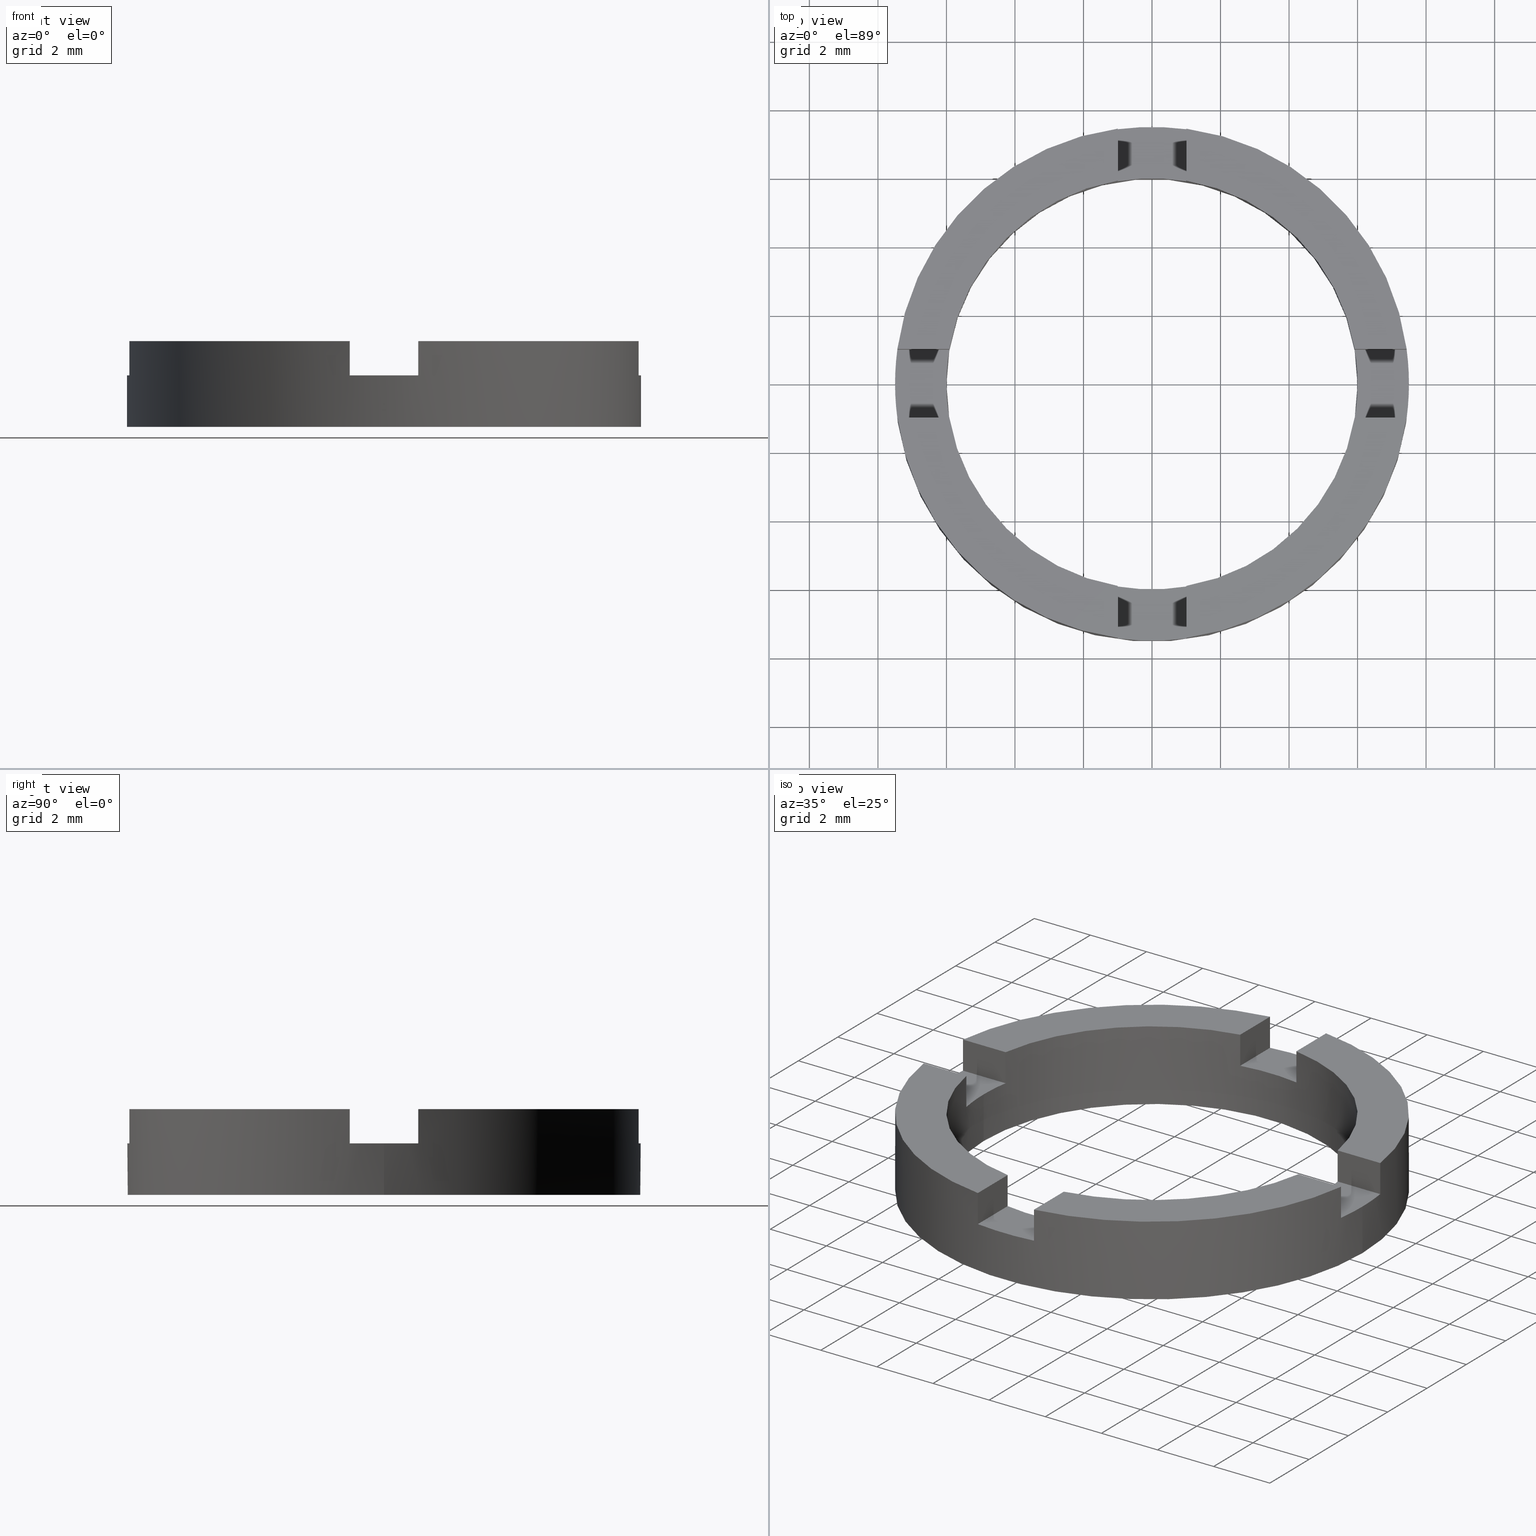
[diagram: canonical four-view strip — front | top / right | iso, engineering-drawing reading convention]
A machine part, canonical four-view strip (front | top / right | iso — engineering-drawing reading convention). The complete STEP part file that produces these views, byte-faithful:
ISO-10303-21;
HEADER;
FILE_DESCRIPTION (( 'STEP AP203' ),
    '1' );
FILE_NAME ('514038.step',
    '2024-12-26T02:31:37',
    ( 'MSI' ),
    ( '' ),
    'SwSTEP 2.0',
    'SolidWorks 2020',
    '' );
FILE_SCHEMA (( 'CONFIG_CONTROL_DESIGN' ));
ENDSEC;

DATA;
#1 = DIRECTION ( 'NONE',  ( -0.000000000000000000, -0.000000000000000000, 1.000000000000000000 ) ) ;
#2 = AXIS2_PLACEMENT_3D ( 'NONE', #229, #772, #482 ) ;
#3 = LINE ( 'NONE', #238, #543 ) ;
#4 = CARTESIAN_POINT ( 'NONE',  ( 3.729655473350131309E-15, 0.9999999999999988898, 2.500000000000000000 ) ) ;
#5 = LINE ( 'NONE', #232, #266 ) ;
#6 = EDGE_CURVE ( 'NONE', #421, #299, #529, .T. ) ;
#7 = FACE_OUTER_BOUND ( 'NONE', #328, .T. ) ;
#8 = ORIENTED_EDGE ( 'NONE', *, *, #489, .F. ) ;
#9 = ADVANCED_FACE ( 'NONE', ( #553 ), #603, .T. ) ;
#10 = VECTOR ( 'NONE', #395, 1000.000000000000000 ) ;
#11 = EDGE_LOOP ( 'NONE', ( #688, #412, #125, #315 ) ) ;
#12 = ORIENTED_EDGE ( 'NONE', *, *, #489, .T. ) ;
#13 = LINE ( 'NONE', #779, #265 ) ;
#14 = ORIENTED_EDGE ( 'NONE', *, *, #146, .F. ) ;
#15 = CIRCLE ( 'NONE', #662, 6.000000000000000888 ) ;
#16 = AXIS2_PLACEMENT_3D ( 'NONE', #671, #763, #220 ) ;
#17 = ORIENTED_EDGE ( 'NONE', *, *, #68, .F. ) ;
#18 = VECTOR ( 'NONE', #449, 1000.000000000000000 ) ;
#19 = ORIENTED_EDGE ( 'NONE', *, *, #392, .T. ) ;
#20 = AXIS2_PLACEMENT_3D ( 'NONE', #484, #728, #767 ) ;
#21 = VECTOR ( 'NONE', #67, 1000.000000000000000 ) ;
#22 = ORIENTED_EDGE ( 'NONE', *, *, #337, .F. ) ;
#23 = LINE ( 'NONE', #202, #290 ) ;
#24 = ORIENTED_EDGE ( 'NONE', *, *, #172, .T. ) ;
#25 = ORIENTED_EDGE ( 'NONE', *, *, #435, .F. ) ;
#26 = EDGE_LOOP ( 'NONE', ( #28, #44, #123, #539, #557, #289, #269, #130, #306, #295, #47, #38 ) ) ;
#27 = ORIENTED_EDGE ( 'NONE', *, *, #622, .T. ) ;
#28 = ORIENTED_EDGE ( 'NONE', *, *, #442, .F. ) ;
#29 = APPROVAL_STATUS ( 'not_yet_approved' ) ;
#30 = ADVANCED_FACE ( 'NONE', ( #308 ), #485, .T. ) ;
#31 = ORIENTED_EDGE ( 'NONE', *, *, #716, .F. ) ;
#32 = VECTOR ( 'NONE', #227, 1000.000000000000000 ) ;
#33 = ORIENTED_EDGE ( 'NONE', *, *, #645, .F. ) ;
#34 = VECTOR ( 'NONE', #383, 1000.000000000000000 ) ;
#35 = ORIENTED_EDGE ( 'NONE', *, *, #768, .F. ) ;
#36 = CARTESIAN_POINT ( 'NONE',  ( 0.000000000000000000, 0.000000000000000000, 2.500000000000000000 ) ) ;
#37 = VERTEX_POINT ( 'NONE', #518 ) ;
#38 = ORIENTED_EDGE ( 'NONE', *, *, #59, .F. ) ;
#39 = CIRCLE ( 'NONE', #252, 6.000000000000000888 ) ;
#40 = DIRECTION ( 'NONE',  ( 1.000000000000000000, -3.744111502316608908E-15, 0.000000000000000000 ) ) ;
#41 = ORIENTED_EDGE ( 'NONE', *, *, #348, .T. ) ;
#42 = VERTEX_POINT ( 'NONE', #704 ) ;
#43 = ADVANCED_FACE ( 'NONE', ( #555 ), #80, .T. ) ;
#44 = ORIENTED_EDGE ( 'NONE', *, *, #230, .F. ) ;
#45 = CARTESIAN_POINT ( 'NONE',  ( 1.000000000000001332, 5.916079783099617018, 1.500000000000000000 ) ) ;
#46 = VECTOR ( 'NONE', #496, 1000.000000000000000 ) ;
#47 = ORIENTED_EDGE ( 'NONE', *, *, #117, .T. ) ;
#48 = CARTESIAN_POINT ( 'NONE',  ( 0.000000000000000000, 0.000000000000000000, 2.500000000000000000 ) ) ;
#49 = CIRCLE ( 'NONE', #170, 7.500000000000000000 ) ;
#50 = EDGE_LOOP ( 'NONE', ( #300, #401, #19, #133 ) ) ;
#51 = VECTOR ( 'NONE', #700, 1000.000000000000000 ) ;
#52 = DIRECTION ( 'NONE',  ( -1.445602896647339656E-17, 1.000000000000000000, 0.000000000000000000 ) ) ;
#53 = ORIENTED_EDGE ( 'NONE', *, *, #715, .T. ) ;
#54 = ORIENTED_EDGE ( 'NONE', *, *, #540, .F. ) ;
#55 = EDGE_CURVE ( 'NONE', #559, #333, #5, .T. ) ;
#56 = ADVANCED_FACE ( 'NONE', ( #7 ), #283, .T. ) ;
#57 = VERTEX_POINT ( 'NONE', #121 ) ;
#58 = CARTESIAN_POINT ( 'NONE',  ( 7.500000000000000000, 9.184850993605147944E-16, 0.000000000000000000 ) ) ;
#59 = EDGE_CURVE ( 'NONE', #143, #564, #39, .T. ) ;
#60 = ORIENTED_EDGE ( 'NONE', *, *, #417, .F. ) ;
#61 = DIRECTION ( 'NONE',  ( 1.000000000000000000, -3.729655473350135253E-15, 0.000000000000000000 ) ) ;
#62 = VERTEX_POINT ( 'NONE', #432 ) ;
#63 = ORIENTED_EDGE ( 'NONE', *, *, #691, .T. ) ;
#64 = ORIENTED_EDGE ( 'NONE', *, *, #461, .T. ) ;
#65 = VERTEX_POINT ( 'NONE', #480 ) ;
#66 = ORIENTED_EDGE ( 'NONE', *, *, #361, .F. ) ;
#67 = DIRECTION ( 'NONE',  ( 1.000000000000000000, -3.729655473350135253E-15, 0.000000000000000000 ) ) ;
#68 = EDGE_CURVE ( 'NONE', #685, #541, #293, .T. ) ;
#69 = FACE_OUTER_BOUND ( 'NONE', #326, .T. ) ;
#70 = CLOSED_SHELL ( 'NONE', ( #658, #254, #572, #9, #56, #275, #173, #733, #224, #375, #409, #425, #30, #367, #43, #759, #684, #607, #503, #341, #755 ) ) ;
#71 = EDGE_CURVE ( 'NONE', #136, #535, #304, .T. ) ;
#72 = DIRECTION ( 'NONE',  ( 0.000000000000000000, 0.000000000000000000, 1.000000000000000000 ) ) ;
#73 = LINE ( 'NONE', #550, #332 ) ;
#74 = CIRCLE ( 'NONE', #16, 6.000000000000000888 ) ;
#75 = FACE_OUTER_BOUND ( 'NONE', #429, .T. ) ;
#76 = DIRECTION ( 'NONE',  ( 1.000000000000000000, 0.000000000000000000, 0.000000000000000000 ) ) ;
#77 = FACE_OUTER_BOUND ( 'NONE', #280, .T. ) ;
#78 = DIRECTION ( 'NONE',  ( -0.000000000000000000, 0.000000000000000000, 1.000000000000000000 ) ) ;
#79 = CIRCLE ( 'NONE', #447, 6.000000000000000888 ) ;
#80 = PLANE ( 'NONE',  #664 ) ;
#81 = VECTOR ( 'NONE', #769, 1000.000000000000000 ) ;
#82 = AXIS2_PLACEMENT_3D ( 'NONE', #459, #329, #504 ) ;
#83 = VECTOR ( 'NONE', #1, 1000.000000000000000 ) ;
#84 = DIRECTION ( 'NONE',  ( 0.000000000000000000, 1.000000000000000000, -0.000000000000000000 ) ) ;
#85 = FACE_OUTER_BOUND ( 'NONE', #161, .T. ) ;
#86 = DIRECTION ( 'NONE',  ( 0.000000000000000000, -0.000000000000000000, -1.000000000000000000 ) ) ;
#87 = VECTOR ( 'NONE', #465, 1000.000000000000000 ) ;
#88 = VECTOR ( 'NONE', #276, 1000.000000000000000 ) ;
#89 = VECTOR ( 'NONE', #349, 1000.000000000000000 ) ;
#90 = DIRECTION ( 'NONE',  ( 0.000000000000000000, 1.000000000000000000, -0.000000000000000000 ) ) ;
#91 = LINE ( 'NONE', #538, #316 ) ;
#92 = CARTESIAN_POINT ( 'NONE',  ( 5.916079783099621459, 0.9999999999999767963, 1.500000000000000000 ) ) ;
#93 = LINE ( 'NONE', #762, #88 ) ;
#94 = AXIS2_PLACEMENT_3D ( 'NONE', #431, #583, #476 ) ;
#95 = VECTOR ( 'NONE', #301, 1000.000000000000000 ) ;
#96 = VECTOR ( 'NONE', #175, 1000.000000000000000 ) ;
#97 = CIRCLE ( 'NONE', #506, 6.000000000000000888 ) ;
#98 = DIRECTION ( 'NONE',  ( 1.000000000000000000, -3.729655473350135253E-15, 0.000000000000000000 ) ) ;
#99 = VECTOR ( 'NONE', #234, 1000.000000000000000 ) ;
#100 = CIRCLE ( 'NONE', #674, 6.000000000000000888 ) ;
#101 = VECTOR ( 'NONE', #153, 1000.000000000000000 ) ;
#102 = CIRCLE ( 'NONE', #302, 7.500000000000000000 ) ;
#103 = VECTOR ( 'NONE', #98, 1000.000000000000000 ) ;
#104 = AXIS2_PLACEMENT_3D ( 'NONE', #719, #676, #52 ) ;
#105 = PLANE ( 'NONE',  #104 ) ;
#106 = EDGE_CURVE ( 'NONE', #42, #157, #567, .T. ) ;
#107 = VECTOR ( 'NONE', #402, 1000.000000000000000 ) ;
#108 = DIRECTION ( 'NONE',  ( -0.000000000000000000, 0.000000000000000000, 1.000000000000000000 ) ) ;
#109 = FACE_OUTER_BOUND ( 'NONE', #26, .T. ) ;
#110 = LINE ( 'NONE', #569, #107 ) ;
#111 = VECTOR ( 'NONE', #470, 1000.000000000000000 ) ;
#112 = CARTESIAN_POINT ( 'NONE',  ( -0.9999999999999986677, 0.000000000000000000, 2.500000000000000000 ) ) ;
#113 = DIRECTION ( 'NONE',  ( -3.744111502316608908E-15, -1.000000000000000000, 0.000000000000000000 ) ) ;
#114 = LINE ( 'NONE', #183, #377 ) ;
#115 = VECTOR ( 'NONE', #160, 1000.000000000000000 ) ;
#116 = FACE_OUTER_BOUND ( 'NONE', #563, .T. ) ;
#117 = EDGE_CURVE ( 'NONE', #136, #564, #279, .T. ) ;
#118 = APPROVAL_STATUS ( 'not_yet_approved' ) ;
#119 = MECHANICAL_CONTEXT ( 'NONE', #764, 'mechanical' ) ;
#120 = VERTEX_POINT ( 'NONE', #453 ) ;
#121 = CARTESIAN_POINT ( 'NONE',  ( -0.9999999999999986677, -7.433034373659253013, 2.500000000000000000 ) ) ;
#122 = ORIENTED_EDGE ( 'NONE', *, *, #715, .F. ) ;
#123 = ORIENTED_EDGE ( 'NONE', *, *, #652, .T. ) ;
#124 = ORIENTED_EDGE ( 'NONE', *, *, #578, .F. ) ;
#125 = ORIENTED_EDGE ( 'NONE', *, *, #361, .T. ) ;
#126 = CARTESIAN_POINT ( 'NONE',  ( -7.433034373659256566, -0.9999999999999733546, 2.500000000000000000 ) ) ;
#127 = VERTEX_POINT ( 'NONE', #317 ) ;
#128 = PERSON_AND_ORGANIZATION_ROLE ( 'design_owner' ) ;
#129 = VERTEX_POINT ( 'NONE', #325 ) ;
#130 = ORIENTED_EDGE ( 'NONE', *, *, #309, .T. ) ;
#131 = PLANE ( 'NONE',  #243 ) ;
#132 = EDGE_CURVE ( 'NONE', #559, #42, #13, .T. ) ;
#133 = ORIENTED_EDGE ( 'NONE', *, *, #454, .T. ) ;
#134 = VERTEX_POINT ( 'NONE', #320 ) ;
#135 = ORIENTED_EDGE ( 'NONE', *, *, #748, .F. ) ;
#136 = VERTEX_POINT ( 'NONE', #777 ) ;
#137 = DIRECTION ( 'NONE',  ( -1.445602896647339348E-17, 1.000000000000000000, 0.000000000000000000 ) ) ;
#138 = ORIENTED_EDGE ( 'NONE', *, *, #203, .T. ) ;
#139 = CARTESIAN_POINT ( 'NONE',  ( 3.729655473350131309E-15, 0.9999999999999988898, 1.500000000000000000 ) ) ;
#140 = PRODUCT_DEFINITION_SHAPE ( 'NONE', 'NONE',  #441 ) ;
#141 = ORIENTED_EDGE ( 'NONE', *, *, #691, .F. ) ;
#142 = CC_DESIGN_PERSON_AND_ORGANIZATION_ASSIGNMENT ( #475, #682, ( #630 ) ) ;
#143 = VERTEX_POINT ( 'NONE', #702 ) ;
#144 = CARTESIAN_POINT ( 'NONE',  ( 0.000000000000000000, 0.000000000000000000, 2.500000000000000000 ) ) ;
#145 = ORIENTED_EDGE ( 'NONE', *, *, #635, .T. ) ;
#146 = EDGE_CURVE ( 'NONE', #588, #134, #258, .T. ) ;
#147 = CARTESIAN_POINT ( 'NONE',  ( 0.000000000000000000, 0.000000000000000000, 0.000000000000000000 ) ) ;
#148 = ORIENTED_EDGE ( 'NONE', *, *, #578, .T. ) ;
#149 = ORIENTED_EDGE ( 'NONE', *, *, #117, .F. ) ;
#150 = ORIENTED_EDGE ( 'NONE', *, *, #766, .F. ) ;
#151 = CARTESIAN_POINT ( 'NONE',  ( 1.000000000000001332, 1.445602896647341197E-17, 2.500000000000000000 ) ) ;
#152 = VERTEX_POINT ( 'NONE', #298 ) ;
#153 = DIRECTION ( 'NONE',  ( -0.000000000000000000, -0.000000000000000000, 1.000000000000000000 ) ) ;
#154 = ORIENTED_EDGE ( 'NONE', *, *, #286, .T. ) ;
#155 = ORIENTED_EDGE ( 'NONE', *, *, #228, .T. ) ;
#156 = AXIS2_PLACEMENT_3D ( 'NONE', #370, #177, #436 ) ;
#157 = VERTEX_POINT ( 'NONE', #451 ) ;
#158 = EDGE_CURVE ( 'NONE', #65, #62, #272, .T. ) ;
#159 = EDGE_LOOP ( 'NONE', ( #399, #403, #259, #565 ) ) ;
#160 = DIRECTION ( 'NONE',  ( -0.000000000000000000, -0.000000000000000000, 1.000000000000000000 ) ) ;
#161 = EDGE_LOOP ( 'NONE', ( #41, #526, #672, #566 ) ) ;
#162 = VERTEX_POINT ( 'NONE', #498 ) ;
#163 = DIRECTION ( 'NONE',  ( 1.000000000000000000, 7.993605777301127091E-15, 0.000000000000000000 ) ) ;
#164 = CC_DESIGN_DATE_AND_TIME_ASSIGNMENT ( #190, #617, ( #630 ) ) ;
#165 = AXIS2_PLACEMENT_3D ( 'NONE', #204, #736, #452 ) ;
#166 = EDGE_CURVE ( 'NONE', #127, #152, #49, .T. ) ;
#167 = CARTESIAN_POINT ( 'NONE',  ( 6.000000000000000888, 7.347880794884120722E-16, 2.500000000000000000 ) ) ;
#168 = DIRECTION ( 'NONE',  ( 0.000000000000000000, 0.000000000000000000, -1.000000000000000000 ) ) ;
#169 = MANIFOLD_SOLID_BREP ( '�г�-����1', #70 ) ;
#170 = AXIS2_PLACEMENT_3D ( 'NONE', #445, #493, #528 ) ;
#171 = CARTESIAN_POINT ( 'NONE',  ( 3.729655473350131309E-15, 0.9999999999999988898, 1.500000000000000000 ) ) ;
#172 = EDGE_CURVE ( 'NONE', #287, #134, #15, .T. ) ;
#173 = ADVANCED_FACE ( 'NONE', ( #256 ), #277, .T. ) ;
#174 = DIRECTION ( 'NONE',  ( -0.000000000000000000, -0.000000000000000000, 1.000000000000000000 ) ) ;
#175 = DIRECTION ( 'NONE',  ( -1.445602896647339348E-17, 1.000000000000000000, 0.000000000000000000 ) ) ;
#176 = APPROVAL ( #430, 'δָ��' ) ;
#177 = DIRECTION ( 'NONE',  ( 0.000000000000000000, 0.000000000000000000, 1.000000000000000000 ) ) ;
#178 = DIRECTION ( 'NONE',  ( 1.000000000000000000, 0.000000000000000000, 0.000000000000000000 ) ) ;
#179 = EDGE_CURVE ( 'NONE', #318, #551, #23, .T. ) ;
#180 = CARTESIAN_POINT ( 'NONE',  ( 0.000000000000000000, 0.000000000000000000, 2.500000000000000000 ) ) ;
#181 = CARTESIAN_POINT ( 'NONE',  ( 7.433034373659256566, 0.9999999999999711342, 2.500000000000000000 ) ) ;
#182 = CARTESIAN_POINT ( 'NONE',  ( -7.500000000000000000, 0.000000000000000000, 2.500000000000000000 ) ) ;
#183 = CARTESIAN_POINT ( 'NONE',  ( 1.000000000000001332, -7.433034373659253013, 1.500000000000000000 ) ) ;
#184 = DIRECTION ( 'NONE',  ( -0.000000000000000000, -0.000000000000000000, 1.000000000000000000 ) ) ;
#185 = APPROVAL_ROLE ( '' ) ;
#186 = DIRECTION ( 'NONE',  ( 1.000000000000000000, 0.000000000000000000, 0.000000000000000000 ) ) ;
#187 = DIRECTION ( 'NONE',  ( -3.729655473350135253E-15, -1.000000000000000000, 0.000000000000000000 ) ) ;
#188 = CARTESIAN_POINT ( 'NONE',  ( 5.916079783099613465, -1.000000000000023315, 1.500000000000000000 ) ) ;
#189 = AXIS2_PLACEMENT_3D ( 'NONE', #723, #515, #268 ) ;
#190 = DATE_AND_TIME ( #196, #724 ) ;
#191 = DIRECTION ( 'NONE',  ( 1.000000000000000000, 0.000000000000000000, 0.000000000000000000 ) ) ;
#192 = DATE_AND_TIME ( #740, #474 ) ;
#193 = DIRECTION ( 'NONE',  ( 1.000000000000000000, -3.729655473350135253E-15, 0.000000000000000000 ) ) ;
#194 = ADVANCED_BREP_SHAPE_REPRESENTATION ( '514038', ( #169, #651 ), #713 ) ;
#195 = APPROVAL_PERSON_ORGANIZATION ( #738, #344, #418 ) ;
#196 = CALENDAR_DATE ( 2024, 26, 12 ) ;
#197 = DIRECTION ( 'NONE',  ( -0.000000000000000000, -0.000000000000000000, 1.000000000000000000 ) ) ;
#198 = CARTESIAN_POINT ( 'NONE',  ( 1.000000000000001332, -5.916079783099617018, 1.500000000000000000 ) ) ;
#199 = UNCERTAINTY_MEASURE_WITH_UNIT (LENGTH_MEASURE( 1.000000000000000082E-05 ), #734, 'distance_accuracy_value', 'NONE');
#200 = PRODUCT_RELATED_PRODUCT_CATEGORY ( 'detail', '', ( #408 ) ) ;
#201 = PERSON_AND_ORGANIZATION ( #757, #212 ) ;
#202 = CARTESIAN_POINT ( 'NONE',  ( -5.916079783099620570, -0.9999999999999790168, 1.500000000000000000 ) ) ;
#203 = EDGE_CURVE ( 'NONE', #333, #157, #3, .T. ) ;
#204 = CARTESIAN_POINT ( 'NONE',  ( 0.000000000000000000, 0.000000000000000000, 2.500000000000000000 ) ) ;
#205 = LOCAL_TIME ( 10, 31, 37.00000000000000000, #735 ) ;
#206 = APPROVAL_DATE_TIME ( #747, #765 ) ;
#207 = CARTESIAN_POINT ( 'NONE',  ( 0.000000000000000000, 0.000000000000000000, 2.500000000000000000 ) ) ;
#208 = COORDINATED_UNIVERSAL_TIME_OFFSET ( 8, 0, .AHEAD. ) ;
#209 = EDGE_CURVE ( 'NONE', #37, #292, #561, .T. ) ;
#210 = CARTESIAN_POINT ( 'NONE',  ( -3.744111502316612853E-15, -1.000000000000001110, 1.500000000000000000 ) ) ;
#211 = PERSON_AND_ORGANIZATION ( #757, #212 ) ;
#212 = ORGANIZATION ( 'δָ��', 'δָ��', '' ) ;
#213 = CARTESIAN_POINT ( 'NONE',  ( -0.9999999999999986677, 0.000000000000000000, 1.500000000000000000 ) ) ;
#214 = DIRECTION ( 'NONE',  ( -1.445602896647339348E-17, 1.000000000000000000, 0.000000000000000000 ) ) ;
#215 = CARTESIAN_POINT ( 'NONE',  ( 0.000000000000000000, 0.000000000000000000, 1.500000000000000000 ) ) ;
#216 = DIRECTION ( 'NONE',  ( 1.000000000000000000, -3.744111502316608908E-15, 0.000000000000000000 ) ) ;
#217 = CARTESIAN_POINT ( 'NONE',  ( 0.000000000000000000, 0.000000000000000000, 0.000000000000000000 ) ) ;
#218 = CC_DESIGN_PERSON_AND_ORGANIZATION_ASSIGNMENT ( #201, #128, ( #408 ) ) ;
#219 = DIRECTION ( 'NONE',  ( 1.000000000000000000, 0.000000000000000000, 0.000000000000000000 ) ) ;
#220 = DIRECTION ( 'NONE',  ( 1.000000000000000000, 0.000000000000000000, 0.000000000000000000 ) ) ;
#221 = DIRECTION ( 'NONE',  ( 0.000000000000000000, 0.000000000000000000, 1.000000000000000000 ) ) ;
#222 = DATE_TIME_ROLE ( 'creation_date' ) ;
#223 = DIRECTION ( 'NONE',  ( 1.000000000000000000, 0.000000000000000000, 0.000000000000000000 ) ) ;
#224 = ADVANCED_FACE ( 'NONE', ( #527, #545 ), #783, .F. ) ;
#225 = AXIS2_PLACEMENT_3D ( 'NONE', #274, #726, #598 ) ;
#226 = DIRECTION ( 'NONE',  ( -0.000000000000000000, -0.000000000000000000, 1.000000000000000000 ) ) ;
#227 = DIRECTION ( 'NONE',  ( -0.000000000000000000, -0.000000000000000000, -1.000000000000000000 ) ) ;
#228 = EDGE_CURVE ( 'NONE', #690, #37, #282, .T. ) ;
#229 = CARTESIAN_POINT ( 'NONE',  ( 0.000000000000000000, 0.000000000000000000, 1.500000000000000000 ) ) ;
#230 = EDGE_CURVE ( 'NONE', #690, #278, #548, .T. ) ;
#231 = DIRECTION ( 'NONE',  ( -1.000000000000000000, 0.000000000000000000, 0.000000000000000000 ) ) ;
#232 = CARTESIAN_POINT ( 'NONE',  ( -0.9999999999999986677, 5.916079783099617906, 1.500000000000000000 ) ) ;
#233 = PERSON_AND_ORGANIZATION_ROLE ( 'creator' ) ;
#234 = DIRECTION ( 'NONE',  ( -0.000000000000000000, -0.000000000000000000, 1.000000000000000000 ) ) ;
#235 = EDGE_CURVE ( 'NONE', #120, #42, #339, .T. ) ;
#236 = PLANE ( 'NONE',  #782 ) ;
#237 = DIRECTION ( 'NONE',  ( -0.000000000000000000, 0.000000000000000000, 1.000000000000000000 ) ) ;
#238 = CARTESIAN_POINT ( 'NONE',  ( -0.9999999999999986677, 0.000000000000000000, 2.500000000000000000 ) ) ;
#239 = CARTESIAN_POINT ( 'NONE',  ( -0.9999999999999986677, 5.916079783099617906, 1.500000000000000000 ) ) ;
#240 = CARTESIAN_POINT ( 'NONE',  ( -0.9999999999999986677, -7.433034373659253013, 1.500000000000000000 ) ) ;
#241 = CARTESIAN_POINT ( 'NONE',  ( -6.000000000000000888, 0.000000000000000000, 2.500000000000000000 ) ) ;
#242 = PRODUCT_DEFINITION_FORMATION_WITH_SPECIFIED_SOURCE ( '�κ�', '', #408, .NOT_KNOWN. ) ;
#243 = AXIS2_PLACEMENT_3D ( 'NONE', #744, #186, #491 ) ;
#244 = EDGE_CURVE ( 'NONE', #120, #62, #345, .T. ) ;
#245 = CARTESIAN_POINT ( 'NONE',  ( -7.500000000000000000, 0.000000000000000000, 0.000000000000000000 ) ) ;
#246 = CC_DESIGN_APPROVAL ( #344, ( #630 ) ) ;
#247 = EDGE_CURVE ( 'NONE', #588, #127, #626, .T. ) ;
#248 = CARTESIAN_POINT ( 'NONE',  ( 1.000000000000001332, 1.445602896647341197E-17, 2.500000000000000000 ) ) ;
#249 = CARTESIAN_POINT ( 'NONE',  ( -0.9999999999999986677, 0.000000000000000000, 1.500000000000000000 ) ) ;
#250 = CARTESIAN_POINT ( 'NONE',  ( -0.9999999999999986677, -5.916079783099617906, 1.500000000000000000 ) ) ;
#251 = DIRECTION ( 'NONE',  ( -0.000000000000000000, 0.000000000000000000, 1.000000000000000000 ) ) ;
#252 = AXIS2_PLACEMENT_3D ( 'NONE', #305, #221, #261 ) ;
#253 = EDGE_CURVE ( 'NONE', #564, #143, #74, .T. ) ;
#254 = ADVANCED_FACE ( 'NONE', ( #596 ), #600, .T. ) ;
#255 = DESIGN_CONTEXT ( 'detailed design', #486, 'design' ) ;
#256 = FACE_OUTER_BOUND ( 'NONE', #426, .T. ) ;
#257 = ORIENTED_EDGE ( 'NONE', *, *, #6, .F. ) ;
#258 = LINE ( 'NONE', #188, #10 ) ;
#259 = ORIENTED_EDGE ( 'NONE', *, *, #448, .F. ) ;
#260 = AXIS2_PLACEMENT_3D ( 'NONE', #171, #366, #61 ) ;
#261 = DIRECTION ( 'NONE',  ( 1.000000000000000000, 0.000000000000000000, 0.000000000000000000 ) ) ;
#262 = VERTEX_POINT ( 'NONE', #376 ) ;
#263 = ORIENTED_EDGE ( 'NONE', *, *, #536, .T. ) ;
#264 = AXIS2_PLACEMENT_3D ( 'NONE', #599, #624, #692 ) ;
#265 = VECTOR ( 'NONE', #84, 1000.000000000000000 ) ;
#266 = VECTOR ( 'NONE', #444, 1000.000000000000000 ) ;
#267 = CARTESIAN_POINT ( 'NONE',  ( -7.433034373659249461, 1.000000000000026645, 2.500000000000000000 ) ) ;
#268 = DIRECTION ( 'NONE',  ( 1.000000000000000000, 0.000000000000000000, 0.000000000000000000 ) ) ;
#269 = ORIENTED_EDGE ( 'NONE', *, *, #55, .T. ) ;
#270 = CARTESIAN_POINT ( 'NONE',  ( 0.000000000000000000, 0.000000000000000000, 1.500000000000000000 ) ) ;
#271 = ORIENTED_EDGE ( 'NONE', *, *, #648, .T. ) ;
#272 = LINE ( 'NONE', #151, #34 ) ;
#273 = EDGE_LOOP ( 'NONE', ( #683, #667, #427, #319 ) ) ;
#274 = CARTESIAN_POINT ( 'NONE',  ( 0.000000000000000000, 0.000000000000000000, 1.500000000000000000 ) ) ;
#275 = ADVANCED_FACE ( 'NONE', ( #364 ), #517, .T. ) ;
#276 = DIRECTION ( 'NONE',  ( 1.000000000000000000, -3.744111502316608908E-15, 0.000000000000000000 ) ) ;
#277 = CYLINDRICAL_SURFACE ( 'NONE', #574, 7.500000000000000000 ) ;
#278 = VERTEX_POINT ( 'NONE', #605 ) ;
#279 = LINE ( 'NONE', #241, #46 ) ;
#280 = EDGE_LOOP ( 'NONE', ( #33, #420, #681, #581, #53, #670 ) ) ;
#281 = CARTESIAN_POINT ( 'NONE',  ( -0.9999999999999986677, 5.916079783099617906, 2.500000000000000000 ) ) ;
#282 = LINE ( 'NONE', #774, #21 ) ;
#283 = PLANE ( 'NONE',  #324 ) ;
#284 = ORIENTED_EDGE ( 'NONE', *, *, #442, .T. ) ;
#285 = AXIS2_PLACEMENT_3D ( 'NONE', #217, #473, #771 ) ;
#286 = EDGE_CURVE ( 'NONE', #330, #541, #352, .T. ) ;
#287 = VERTEX_POINT ( 'NONE', #679 ) ;
#288 = ORIENTED_EDGE ( 'NONE', *, *, #230, .T. ) ;
#289 = ORIENTED_EDGE ( 'NONE', *, *, #558, .F. ) ;
#290 = VECTOR ( 'NONE', #197, 1000.000000000000000 ) ;
#291 = DIRECTION ( 'NONE',  ( -0.000000000000000000, -0.000000000000000000, -1.000000000000000000 ) ) ;
#292 = VERTEX_POINT ( 'NONE', #181 ) ;
#293 = LINE ( 'NONE', #182, #32 ) ;
#294 = ORIENTED_EDGE ( 'NONE', *, *, #748, .T. ) ;
#295 = ORIENTED_EDGE ( 'NONE', *, *, #71, .F. ) ;
#296 = EDGE_LOOP ( 'NONE', ( #669, #288, #27, #554, #531, #571 ) ) ;
#297 = EDGE_LOOP ( 'NONE', ( #404, #393 ) ) ;
#298 = CARTESIAN_POINT ( 'NONE',  ( 7.500000000000000000, 9.184850993605147944E-16, 1.500000000000000000 ) ) ;
#299 = VERTEX_POINT ( 'NONE', #354 ) ;
#300 = ORIENTED_EDGE ( 'NONE', *, *, #753, .F. ) ;
#301 = DIRECTION ( 'NONE',  ( -0.000000000000000000, -0.000000000000000000, 1.000000000000000000 ) ) ;
#302 = AXIS2_PLACEMENT_3D ( 'NONE', #215, #251, #351 ) ;
#303 = ORIENTED_EDGE ( 'NONE', *, *, #707, .T. ) ;
#304 = CIRCLE ( 'NONE', #706, 6.000000000000000888 ) ;
#305 = CARTESIAN_POINT ( 'NONE',  ( 0.000000000000000000, 0.000000000000000000, 0.000000000000000000 ) ) ;
#306 = ORIENTED_EDGE ( 'NONE', *, *, #461, .F. ) ;
#307 = EDGE_CURVE ( 'NONE', #556, #311, #343, .T. ) ;
#308 = FACE_OUTER_BOUND ( 'NONE', #390, .T. ) ;
#309 = EDGE_CURVE ( 'NONE', #333, #299, #350, .T. ) ;
#310 = EDGE_LOOP ( 'NONE', ( #257, #327, #416, #64 ) ) ;
#311 = VERTEX_POINT ( 'NONE', #126 ) ;
#312 = CARTESIAN_POINT ( 'NONE',  ( 7.433034373659256566, 0.9999999999999711342, 1.500000000000000000 ) ) ;
#313 = ORIENTED_EDGE ( 'NONE', *, *, #394, .F. ) ;
#314 = ORIENTED_EDGE ( 'NONE', *, *, #437, .F. ) ;
#315 = ORIENTED_EDGE ( 'NONE', *, *, #235, .T. ) ;
#316 = VECTOR ( 'NONE', #137, 1000.000000000000000 ) ;
#317 = CARTESIAN_POINT ( 'NONE',  ( 7.433034373659249461, -1.000000000000028866, 1.500000000000000000 ) ) ;
#318 = VERTEX_POINT ( 'NONE', #687 ) ;
#319 = ORIENTED_EDGE ( 'NONE', *, *, #106, .T. ) ;
#320 = CARTESIAN_POINT ( 'NONE',  ( 5.916079783099613465, -1.000000000000023315, 2.500000000000000000 ) ) ;
#321 = ORIENTED_EDGE ( 'NONE', *, *, #307, .F. ) ;
#322 = CARTESIAN_POINT ( 'NONE',  ( -5.916079783099620570, -0.9999999999999790168, 2.500000000000000000 ) ) ;
#323 = VERTEX_POINT ( 'NONE', #732 ) ;
#324 = AXIS2_PLACEMENT_3D ( 'NONE', #490, #492, #525 ) ;
#325 = CARTESIAN_POINT ( 'NONE',  ( 7.433034373659249461, -1.000000000000028866, 2.500000000000000000 ) ) ;
#326 = EDGE_LOOP ( 'NONE', ( #537, #138, #294, #665 ) ) ;
#327 = ORIENTED_EDGE ( 'NONE', *, *, #707, .F. ) ;
#328 = EDGE_LOOP ( 'NONE', ( #314, #562, #411, #124 ) ) ;
#329 = DIRECTION ( 'NONE',  ( -3.744111502316608908E-15, -1.000000000000000000, 0.000000000000000000 ) ) ;
#330 = VERTEX_POINT ( 'NONE', #58 ) ;
#331 = ORIENTED_EDGE ( 'NONE', *, *, #179, .F. ) ;
#332 = VECTOR ( 'NONE', #291, 1000.000000000000000 ) ;
#333 = VERTEX_POINT ( 'NONE', #281 ) ;
#334 = AXIS2_PLACEMENT_3D ( 'NONE', #387, #72, #380 ) ;
#335 = VECTOR ( 'NONE', #226, 1000.000000000000000 ) ;
#336 = DIRECTION ( 'NONE',  ( -1.000000000000000000, 0.000000000000000000, 0.000000000000000000 ) ) ;
#337 = EDGE_CURVE ( 'NONE', #323, #680, #634, .T. ) ;
#338 = LINE ( 'NONE', #240, #99 ) ;
#339 = CIRCLE ( 'NONE', #189, 7.500000000000000000 ) ;
#340 = LINE ( 'NONE', #439, #611 ) ;
#341 = ADVANCED_FACE ( 'NONE', ( #618 ), #105, .F. ) ;
#342 = CIRCLE ( 'NONE', #334, 6.000000000000000888 ) ;
#343 = LINE ( 'NONE', #363, #335 ) ;
#344 = APPROVAL ( #118, 'δָ��' ) ;
#345 = LINE ( 'NONE', #510, #606 ) ;
#346 = CARTESIAN_POINT ( 'NONE',  ( 3.729655473350131309E-15, 0.9999999999999988898, 2.500000000000000000 ) ) ;
#347 = CIRCLE ( 'NONE', #94, 7.500000000000000000 ) ;
#348 = EDGE_CURVE ( 'NONE', #134, #129, #93, .T. ) ;
#349 = DIRECTION ( 'NONE',  ( -0.000000000000000000, -0.000000000000000000, -1.000000000000000000 ) ) ;
#350 = CIRCLE ( 'NONE', #156, 6.000000000000000888 ) ;
#351 = DIRECTION ( 'NONE',  ( 1.000000000000000000, 0.000000000000000000, 0.000000000000000000 ) ) ;
#352 = CIRCLE ( 'NONE', #285, 7.500000000000000000 ) ;
#353 = CIRCLE ( 'NONE', #165, 7.500000000000000000 ) ;
#354 = CARTESIAN_POINT ( 'NONE',  ( -5.916079783099614353, 1.000000000000021094, 2.500000000000000000 ) ) ;
#355 = LINE ( 'NONE', #495, #51 ) ;
#356 = VECTOR ( 'NONE', #717, 1000.000000000000000 ) ;
#357 =( NAMED_UNIT ( * ) SI_UNIT ( $, .STERADIAN. ) SOLID_ANGLE_UNIT ( ) );
#358 = DIRECTION ( 'NONE',  ( 1.000000000000000000, 0.000000000000000000, 0.000000000000000000 ) ) ;
#359 = AXIS2_PLACEMENT_3D ( 'NONE', #501, #560, #163 ) ;
#360 = CIRCLE ( 'NONE', #758, 7.500000000000000000 ) ;
#361 = EDGE_CURVE ( 'NONE', #410, #120, #628, .T. ) ;
#362 = VECTOR ( 'NONE', #450, 1000.000000000000000 ) ;
#363 = CARTESIAN_POINT ( 'NONE',  ( -7.433034373659256566, -0.9999999999999733546, 1.500000000000000000 ) ) ;
#364 = FACE_OUTER_BOUND ( 'NONE', #159, .T. ) ;
#365 = CIRCLE ( 'NONE', #382, 7.500000000000000000 ) ;
#366 = DIRECTION ( 'NONE',  ( -3.729655473350135253E-15, -1.000000000000000000, 0.000000000000000000 ) ) ;
#367 = ADVANCED_FACE ( 'NONE', ( #85 ), #438, .F. ) ;
#368 = CARTESIAN_POINT ( 'NONE',  ( 1.000000000000001332, -7.433034373659253013, 2.500000000000000000 ) ) ;
#369 = LINE ( 'NONE', #4, #103 ) ;
#370 = CARTESIAN_POINT ( 'NONE',  ( 0.000000000000000000, 0.000000000000000000, 2.500000000000000000 ) ) ;
#371 = VECTOR ( 'NONE', #40, 1000.000000000000000 ) ;
#372 = AXIS2_PLACEMENT_3D ( 'NONE', #385, #705, #749 ) ;
#373 = PLANE ( 'NONE',  #2 ) ;
#374 = FACE_OUTER_BOUND ( 'NONE', #11, .T. ) ;
#375 = ADVANCED_FACE ( 'NONE', ( #616 ), #654, .T. ) ;
#376 = CARTESIAN_POINT ( 'NONE',  ( 5.916079783099621459, 0.9999999999999767963, 2.500000000000000000 ) ) ;
#377 = VECTOR ( 'NONE', #174, 1000.000000000000000 ) ;
#378 = CYLINDRICAL_SURFACE ( 'NONE', #604, 6.000000000000000888 ) ;
#379 = CIRCLE ( 'NONE', #359, 6.000000000000000888 ) ;
#380 = DIRECTION ( 'NONE',  ( 1.000000000000000000, 0.000000000000000000, 0.000000000000000000 ) ) ;
#381 = LINE ( 'NONE', #112, #111 ) ;
#382 = AXIS2_PLACEMENT_3D ( 'NONE', #752, #627, #191 ) ;
#383 = DIRECTION ( 'NONE',  ( -1.445602896647339348E-17, 1.000000000000000000, 0.000000000000000000 ) ) ;
#384 = CARTESIAN_POINT ( 'NONE',  ( 5.916079783099613465, -1.000000000000023315, 1.500000000000000000 ) ) ;
#385 = CARTESIAN_POINT ( 'NONE',  ( 0.000000000000000000, 0.000000000000000000, 1.500000000000000000 ) ) ;
#386 = ORIENTED_EDGE ( 'NONE', *, *, #307, .T. ) ;
#387 = CARTESIAN_POINT ( 'NONE',  ( 0.000000000000000000, 0.000000000000000000, 2.500000000000000000 ) ) ;
#388 = CC_DESIGN_APPROVAL ( #176, ( #441 ) ) ;
#389 = ORIENTED_EDGE ( 'NONE', *, *, #253, .F. ) ;
#390 = EDGE_LOOP ( 'NONE', ( #141, #549, #155, #576 ) ) ;
#391 = AXIS2_PLACEMENT_3D ( 'NONE', #534, #638, #739 ) ;
#392 = EDGE_CURVE ( 'NONE', #323, #162, #615, .T. ) ;
#393 = ORIENTED_EDGE ( 'NONE', *, *, #59, .T. ) ;
#394 = EDGE_CURVE ( 'NONE', #152, #37, #347, .T. ) ;
#395 = DIRECTION ( 'NONE',  ( -0.000000000000000000, -0.000000000000000000, 1.000000000000000000 ) ) ;
#396 = ORIENTED_EDGE ( 'NONE', *, *, #760, .F. ) ;
#397 = PLANE ( 'NONE',  #776 ) ;
#398 = ORIENTED_EDGE ( 'NONE', *, *, #540, .T. ) ;
#399 = ORIENTED_EDGE ( 'NONE', *, *, #348, .F. ) ;
#400 = VERTEX_POINT ( 'NONE', #513 ) ;
#401 = ORIENTED_EDGE ( 'NONE', *, *, #536, .F. ) ;
#402 = DIRECTION ( 'NONE',  ( -0.000000000000000000, -0.000000000000000000, 1.000000000000000000 ) ) ;
#403 = ORIENTED_EDGE ( 'NONE', *, *, #172, .F. ) ;
#404 = ORIENTED_EDGE ( 'NONE', *, *, #253, .T. ) ;
#405 = EDGE_CURVE ( 'NONE', #685, #556, #625, .T. ) ;
#406 = ORIENTED_EDGE ( 'NONE', *, *, #511, .T. ) ;
#407 = ORIENTED_EDGE ( 'NONE', *, *, #337, .T. ) ;
#408 = PRODUCT ( '514038', '514038', '', ( #119 ) ) ;
#409 = ADVANCED_FACE ( 'NONE', ( #608 ), #613, .F. ) ;
#410 = VERTEX_POINT ( 'NONE', #45 ) ;
#411 = ORIENTED_EDGE ( 'NONE', *, *, #753, .T. ) ;
#412 = ORIENTED_EDGE ( 'NONE', *, *, #558, .T. ) ;
#413 = ORIENTED_EDGE ( 'NONE', *, *, #622, .F. ) ;
#414 = AXIS2_PLACEMENT_3D ( 'NONE', #505, #113, #216 ) ;
#415 = CARTESIAN_POINT ( 'NONE',  ( -3.744111502316612853E-15, -1.000000000000001110, 2.500000000000000000 ) ) ;
#416 = ORIENTED_EDGE ( 'NONE', *, *, #645, .T. ) ;
#417 = EDGE_CURVE ( 'NONE', #262, #65, #97, .T. ) ;
#418 = APPROVAL_ROLE ( '' ) ;
#419 = ORIENTED_EDGE ( 'NONE', *, *, #494, .F. ) ;
#420 = ORIENTED_EDGE ( 'NONE', *, *, #766, .T. ) ;
#421 = VERTEX_POINT ( 'NONE', #267 ) ;
#422 = EDGE_LOOP ( 'NONE', ( #413, #284, #389, #149, #122, #579, #148, #673, #35, #398, #24, #14 ) ) ;
#423 = CARTESIAN_POINT ( 'NONE',  ( 0.000000000000000000, 0.000000000000000000, 2.500000000000000000 ) ) ;
#424 = VERTEX_POINT ( 'NONE', #368 ) ;
#425 = ADVANCED_FACE ( 'NONE', ( #75 ), #656, .T. ) ;
#426 = EDGE_LOOP ( 'NONE', ( #532, #660, #271, #677, #396, #22, #263, #25, #321, #666, #533, #12 ) ) ;
#427 = ORIENTED_EDGE ( 'NONE', *, *, #132, .T. ) ;
#428 = DIRECTION ( 'NONE',  ( -0.000000000000000000, -0.000000000000000000, -1.000000000000000000 ) ) ;
#429 = EDGE_LOOP ( 'NONE', ( #584, #407, #595, #568 ) ) ;
#430 = APPROVAL_STATUS ( 'not_yet_approved' ) ;
#431 = CARTESIAN_POINT ( 'NONE',  ( 0.000000000000000000, 0.000000000000000000, 1.500000000000000000 ) ) ;
#432 = CARTESIAN_POINT ( 'NONE',  ( 1.000000000000001332, 7.433034373659253013, 2.500000000000000000 ) ) ;
#433 =( NAMED_UNIT ( * ) PLANE_ANGLE_UNIT ( ) SI_UNIT ( $, .RADIAN. ) );
#434 = DIRECTION ( 'NONE',  ( 1.000000000000000000, 1.445602896647339656E-17, 0.000000000000000000 ) ) ;
#435 = EDGE_CURVE ( 'NONE', #311, #57, #360, .T. ) ;
#436 = DIRECTION ( 'NONE',  ( 1.000000000000000000, 0.000000000000000000, 0.000000000000000000 ) ) ;
#437 = EDGE_CURVE ( 'NONE', #311, #551, #601, .T. ) ;
#438 = PLANE ( 'NONE',  #414 ) ;
#439 = CARTESIAN_POINT ( 'NONE',  ( 3.729655473350131309E-15, 0.9999999999999988898, 1.500000000000000000 ) ) ;
#440 = CARTESIAN_POINT ( 'NONE',  ( 0.000000000000000000, 0.000000000000000000, 1.500000000000000000 ) ) ;
#441 = PRODUCT_DEFINITION ( 'δ֪', '', #242, #255 ) ;
#442 = EDGE_CURVE ( 'NONE', #278, #143, #619, .T. ) ;
#443 = DIRECTION ( 'NONE',  ( 1.000000000000000000, 0.000000000000000000, 0.000000000000000000 ) ) ;
#444 = DIRECTION ( 'NONE',  ( -0.000000000000000000, -0.000000000000000000, 1.000000000000000000 ) ) ;
#445 = CARTESIAN_POINT ( 'NONE',  ( 0.000000000000000000, 0.000000000000000000, 1.500000000000000000 ) ) ;
#446 = CARTESIAN_POINT ( 'NONE',  ( 1.000000000000001332, 5.916079783099617018, 1.500000000000000000 ) ) ;
#447 = AXIS2_PLACEMENT_3D ( 'NONE', #750, #780, #499 ) ;
#448 = EDGE_CURVE ( 'NONE', #424, #287, #577, .T. ) ;
#449 = DIRECTION ( 'NONE',  ( -0.000000000000000000, -0.000000000000000000, 1.000000000000000000 ) ) ;
#450 = DIRECTION ( 'NONE',  ( -0.000000000000000000, -0.000000000000000000, 1.000000000000000000 ) ) ;
#451 = CARTESIAN_POINT ( 'NONE',  ( -0.9999999999999986677, 7.433034373659253013, 2.500000000000000000 ) ) ;
#452 = DIRECTION ( 'NONE',  ( 1.000000000000000000, 0.000000000000000000, 0.000000000000000000 ) ) ;
#453 = CARTESIAN_POINT ( 'NONE',  ( 1.000000000000001332, 7.433034373659253013, 1.500000000000000000 ) ) ;
#454 = EDGE_CURVE ( 'NONE', #162, #694, #632, .T. ) ;
#455 = CARTESIAN_POINT ( 'NONE',  ( -7.500000000000000000, 0.000000000000000000, 1.500000000000000000 ) ) ;
#456 = PERSON_AND_ORGANIZATION ( #757, #212 ) ;
#457 = PERSON_AND_ORGANIZATION ( #757, #212 ) ;
#458 = CC_DESIGN_PERSON_AND_ORGANIZATION_ASSIGNMENT ( #457, #464, ( #242 ) ) ;
#459 = CARTESIAN_POINT ( 'NONE',  ( -3.744111502316612853E-15, -1.000000000000001110, 1.500000000000000000 ) ) ;
#460 = APPROVAL_DATE_TIME ( #192, #344 ) ;
#461 = EDGE_CURVE ( 'NONE', #535, #299, #355, .T. ) ;
#462 = DIRECTION ( 'NONE',  ( 0.000000000000000000, 0.000000000000000000, 1.000000000000000000 ) ) ;
#463 = SHAPE_DEFINITION_REPRESENTATION ( #140, #194 ) ;
#464 = PERSON_AND_ORGANIZATION_ROLE ( 'creator' ) ;
#465 = DIRECTION ( 'NONE',  ( 0.000000000000000000, 1.000000000000000000, -0.000000000000000000 ) ) ;
#466 = PERSON_AND_ORGANIZATION ( #757, #212 ) ;
#467 = DIRECTION ( 'NONE',  ( 1.000000000000000000, 0.000000000000000000, 0.000000000000000000 ) ) ;
#468 = APPROVAL_PERSON_ORGANIZATION ( #466, #176, #185 ) ;
#469 = AXIS2_PLACEMENT_3D ( 'NONE', #48, #614, #729 ) ;
#470 = DIRECTION ( 'NONE',  ( 0.000000000000000000, 1.000000000000000000, -0.000000000000000000 ) ) ;
#471 = CALENDAR_DATE ( 2024, 26, 12 ) ;
#472 = DATE_AND_TIME ( #741, #725 ) ;
#473 = DIRECTION ( 'NONE',  ( 0.000000000000000000, 0.000000000000000000, 1.000000000000000000 ) ) ;
#474 = LOCAL_TIME ( 10, 31, 37.00000000000000000, #208 ) ;
#475 = PERSON_AND_ORGANIZATION ( #757, #212 ) ;
#476 = DIRECTION ( 'NONE',  ( 1.000000000000000000, 0.000000000000000000, 0.000000000000000000 ) ) ;
#477 = APPROVAL_DATE_TIME ( #481, #176 ) ;
#478 = COORDINATED_UNIVERSAL_TIME_OFFSET ( 8, 0, .AHEAD. ) ;
#479 = AXIS2_PLACEMENT_3D ( 'NONE', #249, #358, #168 ) ;
#480 = CARTESIAN_POINT ( 'NONE',  ( 1.000000000000001332, 5.916079783099617018, 2.500000000000000000 ) ) ;
#481 = DATE_AND_TIME ( #471, #205 ) ;
#482 = DIRECTION ( 'NONE',  ( 1.000000000000000000, 0.000000000000000000, 0.000000000000000000 ) ) ;
#483 = CALENDAR_DATE ( 2024, 26, 12 ) ;
#484 = CARTESIAN_POINT ( 'NONE',  ( 0.000000000000000000, 0.000000000000000000, 2.500000000000000000 ) ) ;
#485 = PLANE ( 'NONE',  #497 ) ;
#486 = APPLICATION_CONTEXT ( 'configuration controlled 3d designs of mechanical parts and assemblies' ) ;
#487 = CC_DESIGN_PERSON_AND_ORGANIZATION_ASSIGNMENT ( #456, #721, ( #242 ) ) ;
#488 = CARTESIAN_POINT ( 'NONE',  ( 0.000000000000000000, 0.000000000000000000, 1.500000000000000000 ) ) ;
#489 = EDGE_CURVE ( 'NONE', #541, #330, #621, .T. ) ;
#490 = CARTESIAN_POINT ( 'NONE',  ( 0.000000000000000000, 0.000000000000000000, 2.500000000000000000 ) ) ;
#491 = DIRECTION ( 'NONE',  ( 0.000000000000000000, 0.000000000000000000, -1.000000000000000000 ) ) ;
#492 = DIRECTION ( 'NONE',  ( 0.000000000000000000, 0.000000000000000000, 1.000000000000000000 ) ) ;
#493 = DIRECTION ( 'NONE',  ( -0.000000000000000000, 0.000000000000000000, 1.000000000000000000 ) ) ;
#494 = EDGE_CURVE ( 'NONE', #680, #400, #91, .T. ) ;
#495 = CARTESIAN_POINT ( 'NONE',  ( -5.916079783099614353, 1.000000000000021094, 1.500000000000000000 ) ) ;
#496 = DIRECTION ( 'NONE',  ( -0.000000000000000000, -0.000000000000000000, -1.000000000000000000 ) ) ;
#497 = AXIS2_PLACEMENT_3D ( 'NONE', #139, #187, #193 ) ;
#498 = CARTESIAN_POINT ( 'NONE',  ( -0.9999999999999986677, -5.916079783099617906, 1.500000000000000000 ) ) ;
#499 = DIRECTION ( 'NONE',  ( 1.000000000000000000, 0.000000000000000000, 0.000000000000000000 ) ) ;
#500 = DIRECTION ( 'NONE',  ( -0.000000000000000000, -0.000000000000000000, 1.000000000000000000 ) ) ;
#501 = CARTESIAN_POINT ( 'NONE',  ( 0.000000000000000000, 0.000000000000000000, 1.500000000000000000 ) ) ;
#502 = CC_DESIGN_DATE_AND_TIME_ASSIGNMENT ( #472, #222, ( #441 ) ) ;
#503 = ADVANCED_FACE ( 'NONE', ( #629 ), #131, .T. ) ;
#504 = DIRECTION ( 'NONE',  ( 1.000000000000000000, -3.744111502316608908E-15, 0.000000000000000000 ) ) ;
#505 = CARTESIAN_POINT ( 'NONE',  ( -3.744111502316612853E-15, -1.000000000000001110, 1.500000000000000000 ) ) ;
#506 = AXIS2_PLACEMENT_3D ( 'NONE', #180, #731, #223 ) ;
#507 = DIRECTION ( 'NONE',  ( -1.000000000000000000, 0.000000000000000000, 0.000000000000000000 ) ) ;
#508 = DIRECTION ( 'NONE',  ( 1.000000000000000000, -3.729655473350135253E-15, 0.000000000000000000 ) ) ;
#509 = DIRECTION ( 'NONE',  ( 1.000000000000000000, 0.000000000000000000, 0.000000000000000000 ) ) ;
#510 = CARTESIAN_POINT ( 'NONE',  ( 1.000000000000001332, 7.433034373659253013, 1.500000000000000000 ) ) ;
#511 = EDGE_CURVE ( 'NONE', #410, #65, #623, .T. ) ;
#512 = DIRECTION ( 'NONE',  ( 0.000000000000000000, 0.000000000000000000, 1.000000000000000000 ) ) ;
#513 = CARTESIAN_POINT ( 'NONE',  ( 1.000000000000001332, -5.916079783099617018, 1.500000000000000000 ) ) ;
#514 = CARTESIAN_POINT ( 'NONE',  ( 1.000000000000001332, 1.445602896647341197E-17, 1.500000000000000000 ) ) ;
#515 = DIRECTION ( 'NONE',  ( -0.000000000000000000, 0.000000000000000000, 1.000000000000000000 ) ) ;
#516 = DIRECTION ( 'NONE',  ( 1.000000000000000000, 0.000000000000000000, 0.000000000000000000 ) ) ;
#517 = PLANE ( 'NONE',  #469 ) ;
#518 = CARTESIAN_POINT ( 'NONE',  ( 7.433034373659256566, 0.9999999999999711342, 1.500000000000000000 ) ) ;
#519 = APPLICATION_PROTOCOL_DEFINITION ( 'international standard', 'config_control_design', 1994, #486 ) ;
#520 = CARTESIAN_POINT ( 'NONE',  ( -7.433034373659249461, 1.000000000000026645, 1.500000000000000000 ) ) ;
#521 = CC_DESIGN_PERSON_AND_ORGANIZATION_ASSIGNMENT ( #211, #233, ( #441 ) ) ;
#522 = AXIS2_PLACEMENT_3D ( 'NONE', #514, #434, #602 ) ;
#523 = DIRECTION ( 'NONE',  ( 0.000000000000000000, 0.000000000000000000, 1.000000000000000000 ) ) ;
#524 = EDGE_CURVE ( 'NONE', #424, #129, #365, .T. ) ;
#525 = DIRECTION ( 'NONE',  ( 1.000000000000000000, 0.000000000000000000, -0.000000000000000000 ) ) ;
#526 = ORIENTED_EDGE ( 'NONE', *, *, #648, .F. ) ;
#527 = FACE_OUTER_BOUND ( 'NONE', #699, .T. ) ;
#528 = DIRECTION ( 'NONE',  ( 1.000000000000000000, 0.000000000000000000, 0.000000000000000000 ) ) ;
#529 = LINE ( 'NONE', #346, #575 ) ;
#530 = CARTESIAN_POINT ( 'NONE',  ( -5.916079783099614353, 1.000000000000021094, 1.500000000000000000 ) ) ;
#531 = ORIENTED_EDGE ( 'NONE', *, *, #166, .T. ) ;
#532 = ORIENTED_EDGE ( 'NONE', *, *, #635, .F. ) ;
#533 = ORIENTED_EDGE ( 'NONE', *, *, #68, .T. ) ;
#534 = CARTESIAN_POINT ( 'NONE',  ( 0.000000000000000000, 0.000000000000000000, 0.000000000000000000 ) ) ;
#535 = VERTEX_POINT ( 'NONE', #530 ) ;
#536 = EDGE_CURVE ( 'NONE', #323, #57, #338, .T. ) ;
#537 = ORIENTED_EDGE ( 'NONE', *, *, #309, .F. ) ;
#538 = CARTESIAN_POINT ( 'NONE',  ( 1.000000000000001332, 1.445602896647341197E-17, 1.500000000000000000 ) ) ;
#539 = ORIENTED_EDGE ( 'NONE', *, *, #417, .T. ) ;
#540 = EDGE_CURVE ( 'NONE', #400, #287, #594, .T. ) ;
#541 = VERTEX_POINT ( 'NONE', #245 ) ;
#542 = DIRECTION ( 'NONE',  ( 1.000000000000000000, 0.000000000000000000, 0.000000000000000000 ) ) ;
#543 = VECTOR ( 'NONE', #90, 1000.000000000000000 ) ;
#544 = ORIENTED_EDGE ( 'NONE', *, *, #235, .F. ) ;
#545 = FACE_BOUND ( 'NONE', #297, .T. ) ;
#546 = ORIENTED_EDGE ( 'NONE', *, *, #448, .T. ) ;
#547 = DIRECTION ( 'NONE',  ( -1.000000000000000000, 0.000000000000000000, 0.000000000000000000 ) ) ;
#548 = CIRCLE ( 'NONE', #372, 6.000000000000000888 ) ;
#549 = ORIENTED_EDGE ( 'NONE', *, *, #652, .F. ) ;
#550 = CARTESIAN_POINT ( 'NONE',  ( 7.500000000000000000, 9.184850993605147944E-16, 2.500000000000000000 ) ) ;
#551 = VERTEX_POINT ( 'NONE', #322 ) ;
#552 = ORIENTED_EDGE ( 'NONE', *, *, #158, .T. ) ;
#553 = FACE_OUTER_BOUND ( 'NONE', #586, .T. ) ;
#554 = ORIENTED_EDGE ( 'NONE', *, *, #247, .T. ) ;
#555 = FACE_OUTER_BOUND ( 'NONE', #296, .T. ) ;
#556 = VERTEX_POINT ( 'NONE', #703 ) ;
#557 = ORIENTED_EDGE ( 'NONE', *, *, #511, .F. ) ;
#558 = EDGE_CURVE ( 'NONE', #559, #410, #100, .T. ) ;
#559 = VERTEX_POINT ( 'NONE', #239 ) ;
#560 = DIRECTION ( 'NONE',  ( 0.000000000000000000, -0.000000000000000000, -1.000000000000000000 ) ) ;
#561 = LINE ( 'NONE', #312, #18 ) ;
#562 = ORIENTED_EDGE ( 'NONE', *, *, #435, .T. ) ;
#563 = EDGE_LOOP ( 'NONE', ( #592, #331, #31, #386 ) ) ;
#564 = VERTEX_POINT ( 'NONE', #639 ) ;
#565 = ORIENTED_EDGE ( 'NONE', *, *, #524, .T. ) ;
#566 = ORIENTED_EDGE ( 'NONE', *, *, #146, .T. ) ;
#567 = LINE ( 'NONE', #641, #570 ) ;
#568 = ORIENTED_EDGE ( 'NONE', *, *, #768, .T. ) ;
#569 = CARTESIAN_POINT ( 'NONE',  ( -7.433034373659249461, 1.000000000000026645, 1.500000000000000000 ) ) ;
#570 = VECTOR ( 'NONE', #500, 1000.000000000000000 ) ;
#571 = ORIENTED_EDGE ( 'NONE', *, *, #394, .T. ) ;
#572 = ADVANCED_FACE ( 'NONE', ( #69 ), #236, .T. ) ;
#573 = DIRECTION ( 'NONE',  ( -0.000000000000000000, 0.000000000000000000, 1.000000000000000000 ) ) ;
#574 = AXIS2_PLACEMENT_3D ( 'NONE', #144, #644, #547 ) ;
#575 = VECTOR ( 'NONE', #508, 1000.000000000000000 ) ;
#576 = ORIENTED_EDGE ( 'NONE', *, *, #209, .T. ) ;
#577 = LINE ( 'NONE', #248, #631 ) ;
#578 = EDGE_CURVE ( 'NONE', #551, #694, #342, .T. ) ;
#579 = ORIENTED_EDGE ( 'NONE', *, *, #179, .T. ) ;
#580 = ORIENTED_EDGE ( 'NONE', *, *, #209, .F. ) ;
#581 = ORIENTED_EDGE ( 'NONE', *, *, #716, .T. ) ;
#582 = APPLICATION_PROTOCOL_DEFINITION ( 'international standard', 'config_control_design', 1994, #764 ) ;
#583 = DIRECTION ( 'NONE',  ( -0.000000000000000000, 0.000000000000000000, 1.000000000000000000 ) ) ;
#584 = ORIENTED_EDGE ( 'NONE', *, *, #392, .F. ) ;
#585 = CARTESIAN_POINT ( 'NONE',  ( 0.000000000000000000, 0.000000000000000000, 1.500000000000000000 ) ) ;
#586 = EDGE_LOOP ( 'NONE', ( #698, #60, #63, #659 ) ) ;
#587 = ORIENTED_EDGE ( 'NONE', *, *, #244, .F. ) ;
#588 = VERTEX_POINT ( 'NONE', #384 ) ;
#589 = AXIS2_PLACEMENT_3D ( 'NONE', #147, #633, #773 ) ;
#590 = CARTESIAN_POINT ( 'NONE',  ( 0.000000000000000000, 0.000000000000000000, 2.500000000000000000 ) ) ;
#591 = EDGE_LOOP ( 'NONE', ( #552, #587, #66, #406 ) ) ;
#592 = ORIENTED_EDGE ( 'NONE', *, *, #437, .T. ) ;
#593 = CARTESIAN_POINT ( 'NONE',  ( -3.744111502316612853E-15, -1.000000000000001110, 1.500000000000000000 ) ) ;
#594 = LINE ( 'NONE', #198, #362 ) ;
#595 = ORIENTED_EDGE ( 'NONE', *, *, #494, .T. ) ;
#596 = FACE_OUTER_BOUND ( 'NONE', #678, .T. ) ;
#597 = ORIENTED_EDGE ( 'NONE', *, *, #244, .T. ) ;
#598 = DIRECTION ( 'NONE',  ( 1.000000000000000000, 0.000000000000000000, 0.000000000000000000 ) ) ;
#599 = CARTESIAN_POINT ( 'NONE',  ( 0.000000000000000000, 0.000000000000000000, 1.500000000000000000 ) ) ;
#600 = CYLINDRICAL_SURFACE ( 'NONE', #710, 7.500000000000000000 ) ;
#601 = LINE ( 'NONE', #415, #356 ) ;
#602 = DIRECTION ( 'NONE',  ( -1.445602896647339656E-17, 1.000000000000000000, 0.000000000000000000 ) ) ;
#603 = PLANE ( 'NONE',  #20 ) ;
#604 = AXIS2_PLACEMENT_3D ( 'NONE', #590, #718, #507 ) ;
#605 = CARTESIAN_POINT ( 'NONE',  ( 6.000000000000000888, 7.347880794884120722E-16, 1.500000000000000000 ) ) ;
#606 = VECTOR ( 'NONE', #184, 1000.000000000000000 ) ;
#607 = ADVANCED_FACE ( 'NONE', ( #77 ), #397, .T. ) ;
#608 = FACE_OUTER_BOUND ( 'NONE', #696, .T. ) ;
#609 = EDGE_CURVE ( 'NONE', #292, #62, #353, .T. ) ;
#610 = CARTESIAN_POINT ( 'NONE',  ( 0.000000000000000000, 0.000000000000000000, 0.000000000000000000 ) ) ;
#611 = VECTOR ( 'NONE', #647, 1000.000000000000000 ) ;
#612 = LINE ( 'NONE', #709, #83 ) ;
#613 = PLANE ( 'NONE',  #522 ) ;
#614 = DIRECTION ( 'NONE',  ( 0.000000000000000000, 0.000000000000000000, 1.000000000000000000 ) ) ;
#615 = LINE ( 'NONE', #213, #87 ) ;
#616 = FACE_OUTER_BOUND ( 'NONE', #50, .T. ) ;
#617 = DATE_TIME_ROLE ( 'classification_date' ) ;
#618 = FACE_OUTER_BOUND ( 'NONE', #591, .T. ) ;
#619 = LINE ( 'NONE', #167, #89 ) ;
#620 = CARTESIAN_POINT ( 'NONE',  ( 0.000000000000000000, 0.000000000000000000, 2.500000000000000000 ) ) ;
#621 = CIRCLE ( 'NONE', #589, 7.500000000000000000 ) ;
#622 = EDGE_CURVE ( 'NONE', #278, #588, #79, .T. ) ;
#623 = LINE ( 'NONE', #446, #101 ) ;
#624 = DIRECTION ( 'NONE',  ( -0.000000000000000000, 0.000000000000000000, 1.000000000000000000 ) ) ;
#625 = CIRCLE ( 'NONE', #264, 7.500000000000000000 ) ;
#626 = LINE ( 'NONE', #593, #81 ) ;
#627 = DIRECTION ( 'NONE',  ( 0.000000000000000000, 0.000000000000000000, 1.000000000000000000 ) ) ;
#628 = LINE ( 'NONE', #756, #96 ) ;
#629 = FACE_OUTER_BOUND ( 'NONE', #273, .T. ) ;
#630 = SECURITY_CLASSIFICATION ( '', '', #761 ) ;
#631 = VECTOR ( 'NONE', #214, 1000.000000000000000 ) ;
#632 = LINE ( 'NONE', #250, #95 ) ;
#633 = DIRECTION ( 'NONE',  ( 0.000000000000000000, 0.000000000000000000, 1.000000000000000000 ) ) ;
#634 = CIRCLE ( 'NONE', #746, 7.500000000000000000 ) ;
#635 = EDGE_CURVE ( 'NONE', #152, #330, #73, .T. ) ;
#636 = LINE ( 'NONE', #92, #115 ) ;
#637 = CYLINDRICAL_SURFACE ( 'NONE', #722, 6.000000000000000888 ) ;
#638 = DIRECTION ( 'NONE',  ( 0.000000000000000000, 0.000000000000000000, 1.000000000000000000 ) ) ;
#639 = CARTESIAN_POINT ( 'NONE',  ( -6.000000000000000888, 0.000000000000000000, 0.000000000000000000 ) ) ;
#640 = FACE_OUTER_BOUND ( 'NONE', #422, .T. ) ;
#641 = CARTESIAN_POINT ( 'NONE',  ( -0.9999999999999986677, 7.433034373659253013, 1.500000000000000000 ) ) ;
#642 = CIRCLE ( 'NONE', #686, 7.500000000000000000 ) ;
#643 = FACE_OUTER_BOUND ( 'NONE', #310, .T. ) ;
#644 = DIRECTION ( 'NONE',  ( -0.000000000000000000, -0.000000000000000000, -1.000000000000000000 ) ) ;
#645 = EDGE_CURVE ( 'NONE', #657, #535, #340, .T. ) ;
#646 = CIRCLE ( 'NONE', #225, 6.000000000000000888 ) ;
#647 = DIRECTION ( 'NONE',  ( 1.000000000000000000, -3.729655473350135253E-15, 0.000000000000000000 ) ) ;
#648 = EDGE_CURVE ( 'NONE', #127, #129, #612, .T. ) ;
#649 = LINE ( 'NONE', #210, #371 ) ;
#650 = DIRECTION ( 'NONE',  ( -0.000000000000000000, -0.000000000000000000, -1.000000000000000000 ) ) ;
#651 = AXIS2_PLACEMENT_3D ( 'NONE', #610, #668, #219 ) ;
#652 = EDGE_CURVE ( 'NONE', #690, #262, #636, .T. ) ;
#653 = CARTESIAN_POINT ( 'NONE',  ( -0.9999999999999986677, -5.916079783099617906, 2.500000000000000000 ) ) ;
#654 = PLANE ( 'NONE',  #479 ) ;
#655 = ORIENTED_EDGE ( 'NONE', *, *, #106, .F. ) ;
#656 = PLANE ( 'NONE',  #689 ) ;
#657 = VERTEX_POINT ( 'NONE', #520 ) ;
#658 = ADVANCED_FACE ( 'NONE', ( #640 ), #637, .F. ) ;
#659 = ORIENTED_EDGE ( 'NONE', *, *, #609, .T. ) ;
#660 = ORIENTED_EDGE ( 'NONE', *, *, #166, .F. ) ;
#661 = APPROVAL_ROLE ( '' ) ;
#662 = AXIS2_PLACEMENT_3D ( 'NONE', #742, #708, #76 ) ;
#663 = ORIENTED_EDGE ( 'NONE', *, *, #609, .F. ) ;
#664 = AXIS2_PLACEMENT_3D ( 'NONE', #440, #237, #178 ) ;
#665 = ORIENTED_EDGE ( 'NONE', *, *, #6, .T. ) ;
#666 = ORIENTED_EDGE ( 'NONE', *, *, #405, .F. ) ;
#667 = ORIENTED_EDGE ( 'NONE', *, *, #55, .F. ) ;
#668 = DIRECTION ( 'NONE',  ( 0.000000000000000000, 0.000000000000000000, 1.000000000000000000 ) ) ;
#669 = ORIENTED_EDGE ( 'NONE', *, *, #228, .F. ) ;
#670 = ORIENTED_EDGE ( 'NONE', *, *, #71, .T. ) ;
#671 = CARTESIAN_POINT ( 'NONE',  ( 0.000000000000000000, 0.000000000000000000, 0.000000000000000000 ) ) ;
#672 = ORIENTED_EDGE ( 'NONE', *, *, #247, .F. ) ;
#673 = ORIENTED_EDGE ( 'NONE', *, *, #454, .F. ) ;
#674 = AXIS2_PLACEMENT_3D ( 'NONE', #778, #86, #695 ) ;
#675 = PLANE ( 'NONE',  #260 ) ;
#676 = DIRECTION ( 'NONE',  ( 1.000000000000000000, 1.445602896647339656E-17, 0.000000000000000000 ) ) ;
#677 = ORIENTED_EDGE ( 'NONE', *, *, #524, .F. ) ;
#678 = EDGE_LOOP ( 'NONE', ( #313, #145, #154, #17, #150, #303, #135, #655, #544, #597, #663, #580 ) ) ;
#679 = CARTESIAN_POINT ( 'NONE',  ( 1.000000000000001332, -5.916079783099617018, 2.500000000000000000 ) ) ;
#680 = VERTEX_POINT ( 'NONE', #754 ) ;
#681 = ORIENTED_EDGE ( 'NONE', *, *, #405, .T. ) ;
#682 = PERSON_AND_ORGANIZATION_ROLE ( 'classification_officer' ) ;
#683 = ORIENTED_EDGE ( 'NONE', *, *, #203, .F. ) ;
#684 = ADVANCED_FACE ( 'NONE', ( #116 ), #711, .F. ) ;
#685 = VERTEX_POINT ( 'NONE', #455 ) ;
#686 = AXIS2_PLACEMENT_3D ( 'NONE', #423, #512, #516 ) ;
#687 = CARTESIAN_POINT ( 'NONE',  ( -5.916079783099620570, -0.9999999999999790168, 1.500000000000000000 ) ) ;
#688 = ORIENTED_EDGE ( 'NONE', *, *, #132, .F. ) ;
#689 = AXIS2_PLACEMENT_3D ( 'NONE', #585, #108, #467 ) ;
#690 = VERTEX_POINT ( 'NONE', #712 ) ;
#691 = EDGE_CURVE ( 'NONE', #262, #292, #369, .T. ) ;
#692 = DIRECTION ( 'NONE',  ( 1.000000000000000000, 0.000000000000000000, 0.000000000000000000 ) ) ;
#693 = ORIENTED_EDGE ( 'NONE', *, *, #286, .F. ) ;
#694 = VERTEX_POINT ( 'NONE', #653 ) ;
#695 = DIRECTION ( 'NONE',  ( 1.000000000000000000, 0.000000000000000000, 0.000000000000000000 ) ) ;
#696 = EDGE_LOOP ( 'NONE', ( #546, #54, #419, #697 ) ) ;
#697 = ORIENTED_EDGE ( 'NONE', *, *, #760, .T. ) ;
#698 = ORIENTED_EDGE ( 'NONE', *, *, #158, .F. ) ;
#699 = EDGE_LOOP ( 'NONE', ( #8, #693 ) ) ;
#700 = DIRECTION ( 'NONE',  ( -0.000000000000000000, -0.000000000000000000, 1.000000000000000000 ) ) ;
#701 = CC_DESIGN_SECURITY_CLASSIFICATION ( #630, ( #242 ) ) ;
#702 = CARTESIAN_POINT ( 'NONE',  ( 6.000000000000000888, 7.347880794884120722E-16, 0.000000000000000000 ) ) ;
#703 = CARTESIAN_POINT ( 'NONE',  ( -7.433034373659256566, -0.9999999999999733546, 1.500000000000000000 ) ) ;
#704 = CARTESIAN_POINT ( 'NONE',  ( -0.9999999999999986677, 7.433034373659253013, 1.500000000000000000 ) ) ;
#705 = DIRECTION ( 'NONE',  ( 0.000000000000000000, -0.000000000000000000, -1.000000000000000000 ) ) ;
#706 = AXIS2_PLACEMENT_3D ( 'NONE', #270, #751, #542 ) ;
#707 = EDGE_CURVE ( 'NONE', #657, #421, #110, .T. ) ;
#708 = DIRECTION ( 'NONE',  ( 0.000000000000000000, 0.000000000000000000, 1.000000000000000000 ) ) ;
#709 = CARTESIAN_POINT ( 'NONE',  ( 7.433034373659249461, -1.000000000000028866, 1.500000000000000000 ) ) ;
#710 = AXIS2_PLACEMENT_3D ( 'NONE', #36, #428, #231 ) ;
#711 = PLANE ( 'NONE',  #82 ) ;
#712 = CARTESIAN_POINT ( 'NONE',  ( 5.916079783099621459, 0.9999999999999767963, 1.500000000000000000 ) ) ;
#713 =( GEOMETRIC_REPRESENTATION_CONTEXT ( 3 ) GLOBAL_UNCERTAINTY_ASSIGNED_CONTEXT ( ( #199 ) ) GLOBAL_UNIT_ASSIGNED_CONTEXT ( ( #734, #433, #357 ) ) REPRESENTATION_CONTEXT ( 'NONE', 'WORKASPACE' ) );
#714 = DIRECTION ( 'NONE',  ( 1.000000000000000000, 0.000000000000000000, 0.000000000000000000 ) ) ;
#715 = EDGE_CURVE ( 'NONE', #318, #136, #379, .T. ) ;
#716 = EDGE_CURVE ( 'NONE', #556, #318, #649, .T. ) ;
#717 = DIRECTION ( 'NONE',  ( 1.000000000000000000, -3.744111502316608908E-15, 0.000000000000000000 ) ) ;
#718 = DIRECTION ( 'NONE',  ( -0.000000000000000000, -0.000000000000000000, -1.000000000000000000 ) ) ;
#719 = CARTESIAN_POINT ( 'NONE',  ( 1.000000000000001332, 1.445602896647341197E-17, 1.500000000000000000 ) ) ;
#720 = CARTESIAN_POINT ( 'NONE',  ( 0.000000000000000000, 0.000000000000000000, 2.500000000000000000 ) ) ;
#721 = PERSON_AND_ORGANIZATION_ROLE ( 'design_supplier' ) ;
#722 = AXIS2_PLACEMENT_3D ( 'NONE', #620, #650, #336 ) ;
#723 = CARTESIAN_POINT ( 'NONE',  ( 0.000000000000000000, 0.000000000000000000, 1.500000000000000000 ) ) ;
#724 = LOCAL_TIME ( 10, 31, 37.00000000000000000, #727 ) ;
#725 = LOCAL_TIME ( 10, 31, 37.00000000000000000, #478 ) ;
#726 = DIRECTION ( 'NONE',  ( 0.000000000000000000, -0.000000000000000000, -1.000000000000000000 ) ) ;
#727 = COORDINATED_UNIVERSAL_TIME_OFFSET ( 8, 0, .AHEAD. ) ;
#728 = DIRECTION ( 'NONE',  ( 0.000000000000000000, 0.000000000000000000, 1.000000000000000000 ) ) ;
#729 = DIRECTION ( 'NONE',  ( 1.000000000000000000, 0.000000000000000000, -0.000000000000000000 ) ) ;
#730 = COORDINATED_UNIVERSAL_TIME_OFFSET ( 8, 0, .AHEAD. ) ;
#731 = DIRECTION ( 'NONE',  ( 0.000000000000000000, 0.000000000000000000, 1.000000000000000000 ) ) ;
#732 = CARTESIAN_POINT ( 'NONE',  ( -0.9999999999999986677, -7.433034373659253013, 1.500000000000000000 ) ) ;
#733 = ADVANCED_FACE ( 'NONE', ( #109 ), #378, .F. ) ;
#734 =( LENGTH_UNIT ( ) NAMED_UNIT ( * ) SI_UNIT ( .MILLI., .METRE. ) );
#735 = COORDINATED_UNIVERSAL_TIME_OFFSET ( 8, 0, .AHEAD. ) ;
#736 = DIRECTION ( 'NONE',  ( 0.000000000000000000, 0.000000000000000000, 1.000000000000000000 ) ) ;
#737 = LOCAL_TIME ( 10, 31, 37.00000000000000000, #730 ) ;
#738 = PERSON_AND_ORGANIZATION ( #757, #212 ) ;
#739 = DIRECTION ( 'NONE',  ( 1.000000000000000000, 0.000000000000000000, -0.000000000000000000 ) ) ;
#740 = CALENDAR_DATE ( 2024, 26, 12 ) ;
#741 = CALENDAR_DATE ( 2024, 26, 12 ) ;
#742 = CARTESIAN_POINT ( 'NONE',  ( 0.000000000000000000, 0.000000000000000000, 2.500000000000000000 ) ) ;
#743 = PERSON_AND_ORGANIZATION ( #757, #212 ) ;
#744 = CARTESIAN_POINT ( 'NONE',  ( -0.9999999999999986677, 0.000000000000000000, 1.500000000000000000 ) ) ;
#745 = APPROVAL_PERSON_ORGANIZATION ( #743, #765, #661 ) ;
#746 = AXIS2_PLACEMENT_3D ( 'NONE', #770, #573, #509 ) ;
#747 = DATE_AND_TIME ( #483, #737 ) ;
#748 = EDGE_CURVE ( 'NONE', #157, #421, #642, .T. ) ;
#749 = DIRECTION ( 'NONE',  ( 1.000000000000000000, -1.776356839400250465E-15, 0.000000000000000000 ) ) ;
#750 = CARTESIAN_POINT ( 'NONE',  ( 0.000000000000000000, 0.000000000000000000, 1.500000000000000000 ) ) ;
#751 = DIRECTION ( 'NONE',  ( 0.000000000000000000, -0.000000000000000000, -1.000000000000000000 ) ) ;
#752 = CARTESIAN_POINT ( 'NONE',  ( 0.000000000000000000, 0.000000000000000000, 2.500000000000000000 ) ) ;
#753 = EDGE_CURVE ( 'NONE', #57, #694, #381, .T. ) ;
#754 = CARTESIAN_POINT ( 'NONE',  ( 1.000000000000001332, -7.433034373659253013, 1.500000000000000000 ) ) ;
#755 = ADVANCED_FACE ( 'NONE', ( #374 ), #373, .T. ) ;
#756 = CARTESIAN_POINT ( 'NONE',  ( 1.000000000000001332, 1.445602896647341197E-17, 1.500000000000000000 ) ) ;
#757 = PERSON ( 'δָ��', 'δָ��', 'δָ��', ('δָ��'), ('δָ��'), ('δָ��') ) ;
#758 = AXIS2_PLACEMENT_3D ( 'NONE', #720, #462, #714 ) ;
#759 = ADVANCED_FACE ( 'NONE', ( #643 ), #675, .T. ) ;
#760 = EDGE_CURVE ( 'NONE', #680, #424, #114, .T. ) ;
#761 = SECURITY_CLASSIFICATION_LEVEL ( 'unclassified' ) ;
#762 = CARTESIAN_POINT ( 'NONE',  ( -3.744111502316612853E-15, -1.000000000000001110, 2.500000000000000000 ) ) ;
#763 = DIRECTION ( 'NONE',  ( 0.000000000000000000, 0.000000000000000000, 1.000000000000000000 ) ) ;
#764 = APPLICATION_CONTEXT ( 'configuration controlled 3d designs of mechanical parts and assemblies' ) ;
#765 = APPROVAL ( #29, 'δָ��' ) ;
#766 = EDGE_CURVE ( 'NONE', #657, #685, #102, .T. ) ;
#767 = DIRECTION ( 'NONE',  ( 1.000000000000000000, 0.000000000000000000, -0.000000000000000000 ) ) ;
#768 = EDGE_CURVE ( 'NONE', #400, #162, #646, .T. ) ;
#769 = DIRECTION ( 'NONE',  ( 1.000000000000000000, -3.744111502316608908E-15, 0.000000000000000000 ) ) ;
#770 = CARTESIAN_POINT ( 'NONE',  ( 0.000000000000000000, 0.000000000000000000, 1.500000000000000000 ) ) ;
#771 = DIRECTION ( 'NONE',  ( 1.000000000000000000, 0.000000000000000000, 0.000000000000000000 ) ) ;
#772 = DIRECTION ( 'NONE',  ( -0.000000000000000000, 0.000000000000000000, 1.000000000000000000 ) ) ;
#773 = DIRECTION ( 'NONE',  ( 1.000000000000000000, 0.000000000000000000, 0.000000000000000000 ) ) ;
#774 = CARTESIAN_POINT ( 'NONE',  ( 3.729655473350131309E-15, 0.9999999999999988898, 1.500000000000000000 ) ) ;
#775 = DIRECTION ( 'NONE',  ( 1.000000000000000000, 0.000000000000000000, -0.000000000000000000 ) ) ;
#776 = AXIS2_PLACEMENT_3D ( 'NONE', #488, #78, #443 ) ;
#777 = CARTESIAN_POINT ( 'NONE',  ( -6.000000000000000888, 0.000000000000000000, 1.500000000000000000 ) ) ;
#778 = CARTESIAN_POINT ( 'NONE',  ( 0.000000000000000000, 0.000000000000000000, 1.500000000000000000 ) ) ;
#779 = CARTESIAN_POINT ( 'NONE',  ( -0.9999999999999986677, 0.000000000000000000, 1.500000000000000000 ) ) ;
#780 = DIRECTION ( 'NONE',  ( 0.000000000000000000, -0.000000000000000000, -1.000000000000000000 ) ) ;
#781 = CC_DESIGN_APPROVAL ( #765, ( #242 ) ) ;
#782 = AXIS2_PLACEMENT_3D ( 'NONE', #207, #523, #775 ) ;
#783 = PLANE ( 'NONE',  #391 ) ;
ENDSEC;
END-ISO-10303-21;
